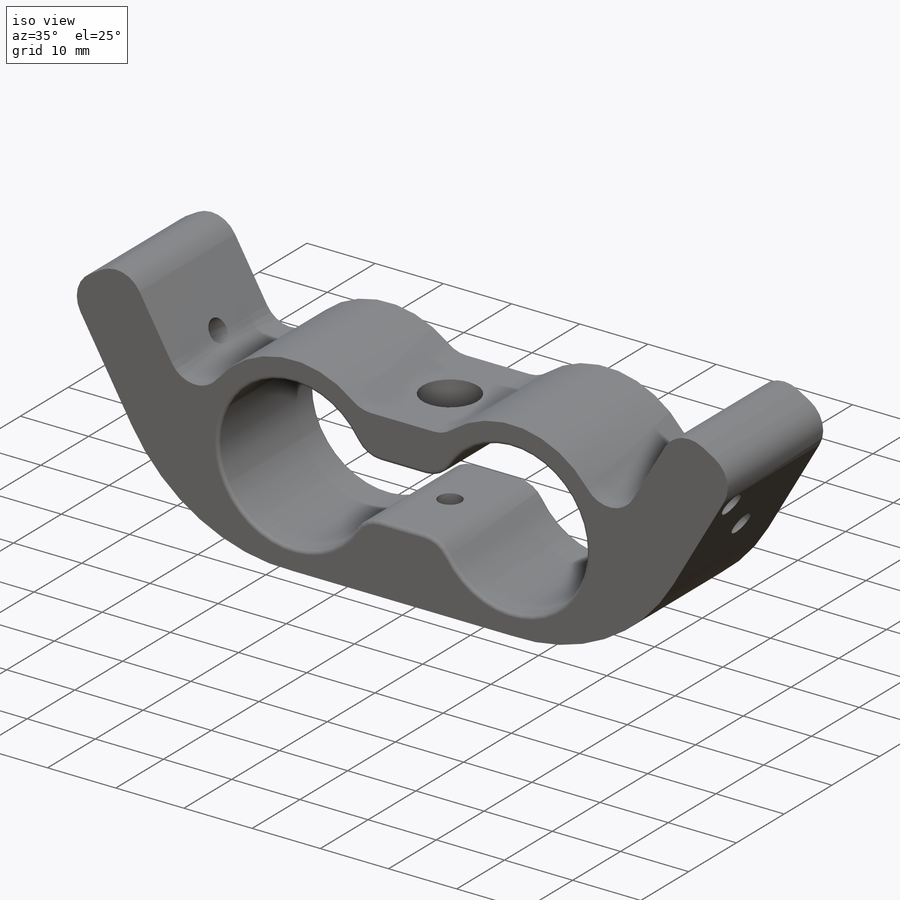
[diagram: iso view]
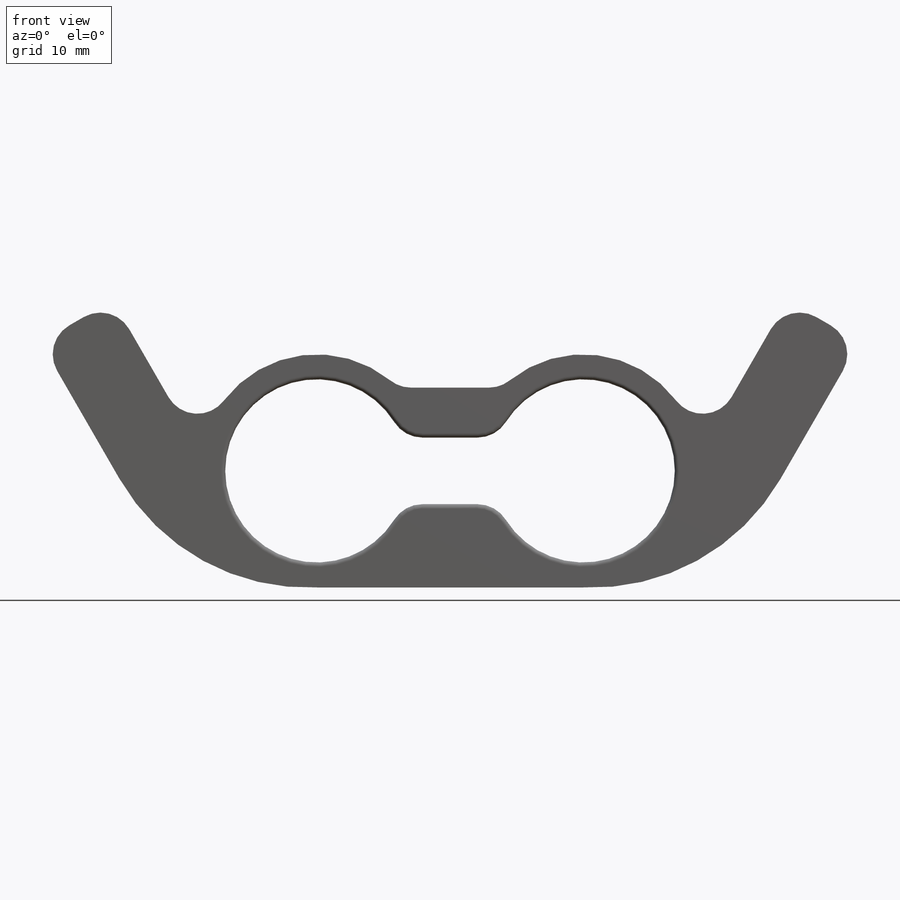
[diagram: front view]
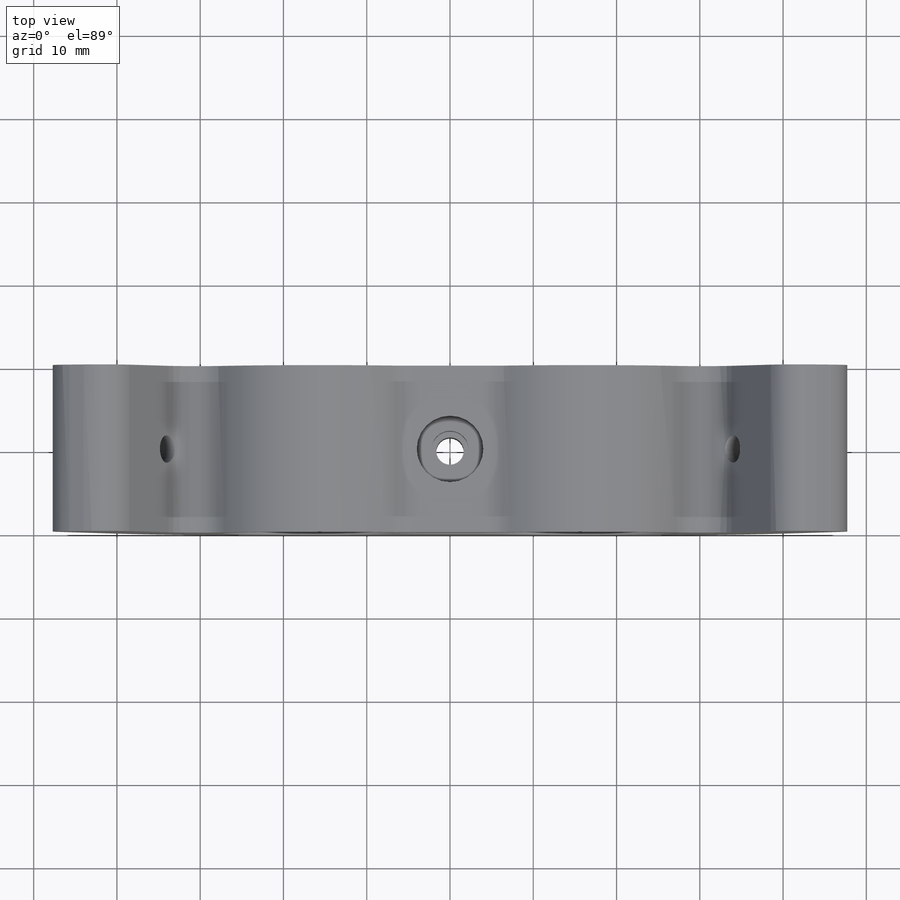
[diagram: top view]
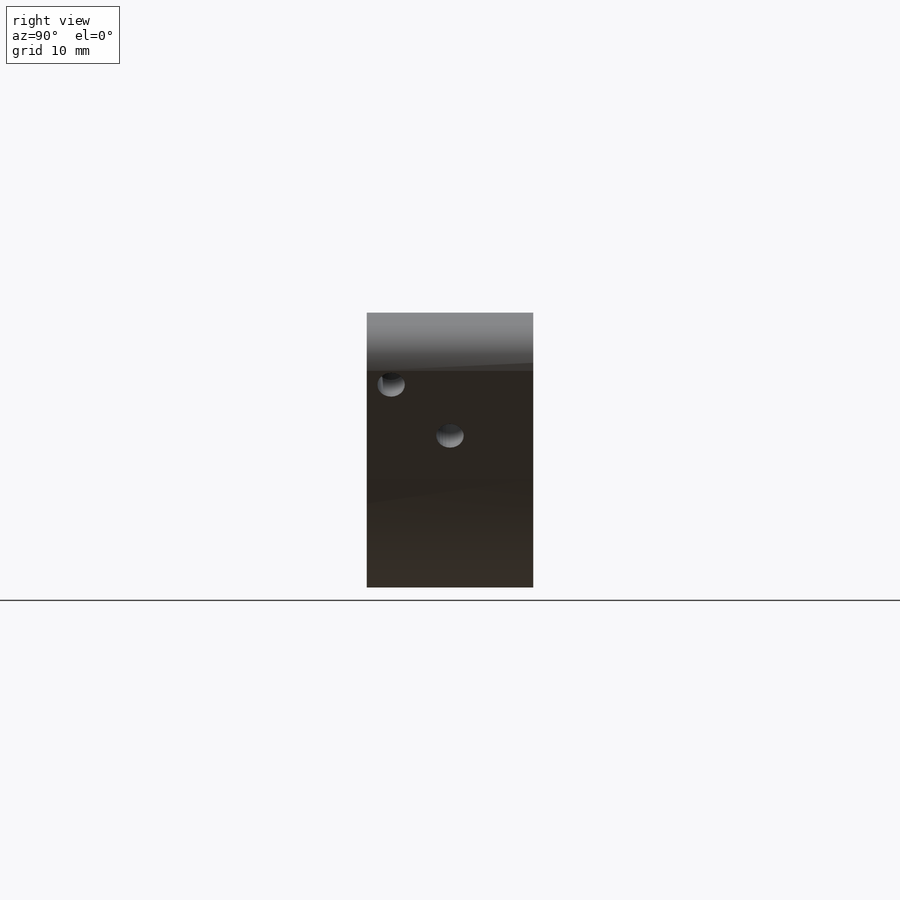
[diagram: right view]
SOLIDWORKS PART (.sldprt)
format: sldprt  version: not decoded by parser v0  size: 614,912 bytes
history: native  units: mm
features: sketch x15, plane x4, hole x4, extrude x3, thread x3, mirror x3, fillet x2, material x1, cut_extrude x1 (+8 scaffold rows collapsed)
feature tree (44):
  scaffold x8  (default folders/planes/origin — collapsed)
  material  "Сплав 2024"
  plane  "Спереди"
  plane  "Сверху"
  plane  "Справа"
  sketch  "Эскиз1"  dims[c1.D1=22.0mm c1.D2=22.0mm c1.D6=14.0mm c1.D16=14.0mm c2.D6=14.0mm c2.D16=11.0mm c2.D3=16.0mm c2.D4=16.0mm c2.D7=6.0mm c2.D8=~52.119307mm c3.D8=30.0deg c3.D9=~92.957614mm c4.D9=30.0deg c4.D10=10.0mm c4.D11=10.0mm c4.D12=10.0mm c4.D13=8.0mm c4.D14=30.0mm c4.D15=30.0mm c4.D6=3.0mm c4.D16=~54.101604mm c4.D5=3.0mm c5.D6=3.0mm]
  extrude  "Бобышка-Вытянуть2"  Depth=20mm
  sketch  "Эскиз3"
  hole  "Цековка для винта с внутренним шестигранником M41"  [1 undecoded]
  sketch  "Эскиз5"
  sketch  "Эскиз4"  dims[hole-wizard template sketch: 45 standard entries collapsed; hole parameters above]
  hole  "Отверстие обработанное метчиком M4x0.71"  [1 undecoded]
  sketch  "Эскиз7"
  sketch  "Эскиз6"  dims[hole-wizard template sketch: 61 standard entries collapsed; hole parameters above]
  thread  "Отверстие резьбы1"  Diameter=4mm  [1 undecoded]
  sketch  "Эскиз15"  dims[D1=7.0mm]
  extrude  "Бобышка-Вытянуть4"  [1 undecoded]
  sketch  "Эскиз16"  dims[D1=10.0mm]
  cut_extrude  "Вырез-Вытянуть1"  [1 undecoded]
  fillet  "Скругление1"  Radius=4mm
  sketch  "Эскиз8"  dims[D1=13.0mm]
  hole  "Отверстие обработанное метчиком M4x0.72"  [1 undecoded]
  sketch  "Эскиз10"
  sketch  "Эскиз9"  dims[hole-wizard template sketch: 60 standard entries collapsed; hole parameters kept: c18.Глубина проходного сверла=~85.693575mm]
  thread  "Отверстие резьбы4"  Diameter=4mm  [1 undecoded]
  plane  "Плоскость1"
  mirror  "Зеркальное отражение1"
  sketch  "Эскиз11"  dims[c1.D2=4.0mm c1.D1=~18.331281mm c2.D1=45.0deg c2.D3=10.0mm]
  extrude  "Бобышка-Вытянуть3"  Depth=8mm
  mirror  "Зеркальное отражение2"
  sketch  "Эскиз12"  dims[c1.D1=~23.778492mm c2.D1=45.0deg c2.D2=10.0mm c3.D1=~26.121637mm c4.D1=45.0deg]
  hole  "Отверстие обработанное метчиком M4x0.73"  [1 undecoded]
  sketch  "Эскиз14"
  sketch  "Эскиз13"  dims[hole-wizard template sketch: 47 standard entries collapsed; hole parameters kept: c15.Глубина сверла=4.0mm c15.D3=~14.816244mm c15.Угол заточки сверла=118.0deg]
  thread  "Отверстие резьбы3"  Diameter=6mm  [1 undecoded]
  mirror  "Зеркальное отражение3"
  fillet  "Скругление6"  Radius=0.5mm
decode coverage: 17 of 31 modeling features carry decoded parameters
note: ~ marks probable driven/reference dimensions
note: 9 parameter values undecoded
summary: no parameter record found for 6 features
note: suppression state not decoded; provenance and decode notes live in map.json
